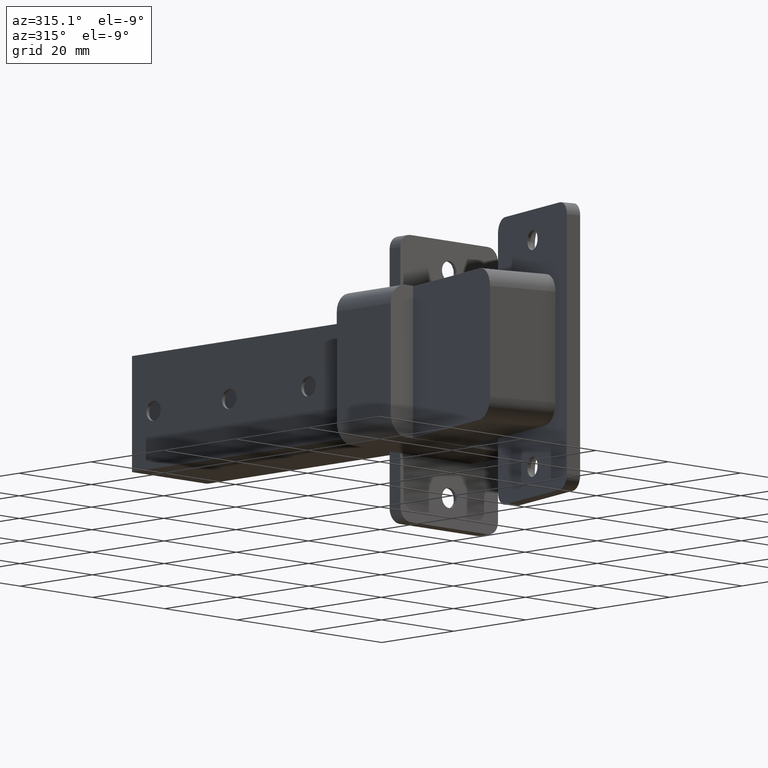
[diagram: clean part render]
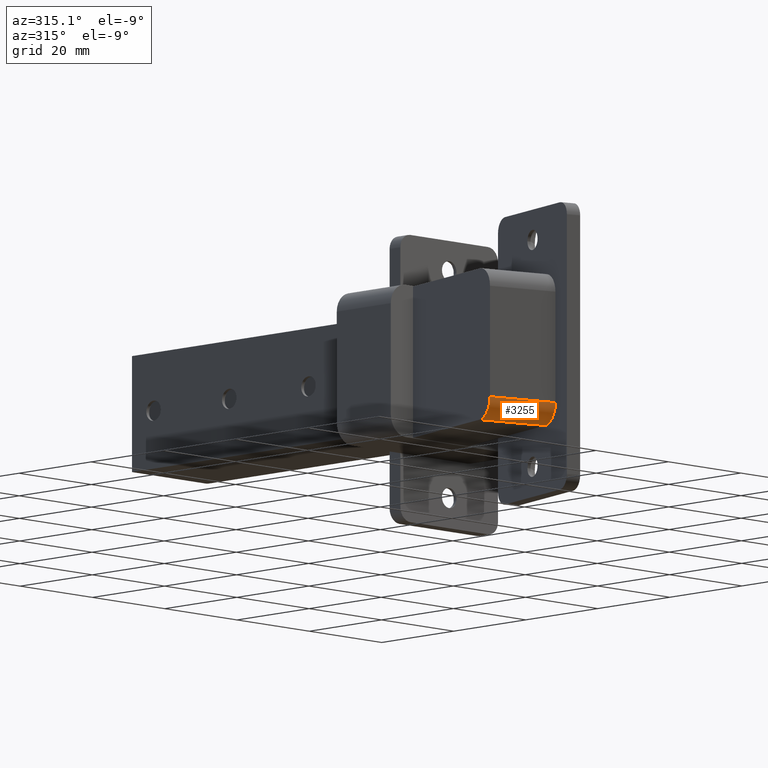
[diagram: same view with one face highlighted and labeled with its STEP entity id]
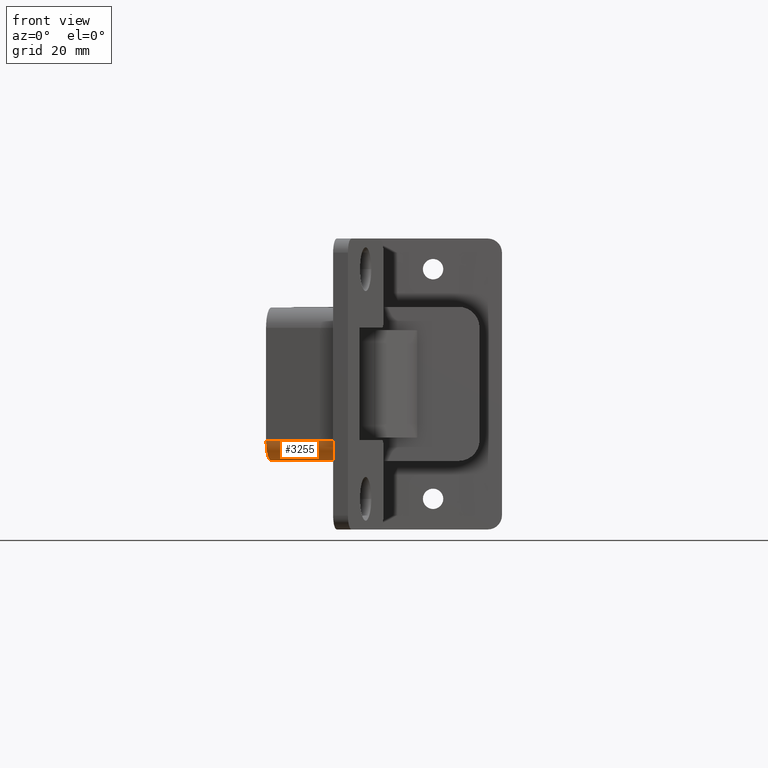
[diagram: same view with one face highlighted and labeled with its STEP entity id]
A machine part, auxiliary view. The second image highlights one B-rep face of the part: STEP entity #3255.
A second angle (front view) of the same face is appended — the face is thin or edge-on in the first view.
In plain terms, the highlighted cylindrical surface (edge-blend (fillet) strip) has radius 4 mm, axis along (-0.9662, 0.2577, 0).
Its self-contained STEP definition (entity closure, byte-faithful):
#71=CYLINDRICAL_SURFACE('',#3494,4.);
#174=CIRCLE('',#3495,4.);
#175=CIRCLE('',#3496,4.00000019574386);
#325=FACE_OUTER_BOUND('',#517,.T.);
#517=EDGE_LOOP('',(#2583,#2584,#2585,#2586));
#791=LINE('',#5087,#1139);
#792=LINE('',#5090,#1140);
#1139=VECTOR('',#4123,1.);
#1140=VECTOR('',#4126,1.);
#1466=VERTEX_POINT('',#5083);
#1467=VERTEX_POINT('',#5084);
#1468=VERTEX_POINT('',#5086);
#1469=VERTEX_POINT('',#5088);
#1863=EDGE_CURVE('',#1466,#1467,#174,.T.);
#1864=EDGE_CURVE('',#1467,#1468,#791,.T.);
#1865=EDGE_CURVE('',#1468,#1469,#175,.F.);
#1866=EDGE_CURVE('',#1469,#1466,#792,.T.);
#2583=ORIENTED_EDGE('',*,*,#1863,.T.);
#2584=ORIENTED_EDGE('',*,*,#1864,.T.);
#2585=ORIENTED_EDGE('',*,*,#1865,.T.);
#2586=ORIENTED_EDGE('',*,*,#1866,.T.);
#3255=ADVANCED_FACE('',(#325),#71,.T.);
#3494=AXIS2_PLACEMENT_3D('',#5082,#4119,#4120);
#3495=AXIS2_PLACEMENT_3D('',#5085,#4121,#4122);
#3496=AXIS2_PLACEMENT_3D('',#5089,#4124,#4125);
#4119=DIRECTION('center_axis',(-0.966218379560913,0.257724742697869,0.));
#4120=DIRECTION('ref_axis',(-0.182238913241214,-0.683219568294606,-0.707106781186543));
#4121=DIRECTION('center_axis',(0.966218379560915,-0.257724742697864,0.));
#4122=DIRECTION('ref_axis',(-0.182238913241214,-0.683219568294606,-0.707106781186543));
#4123=DIRECTION('',(0.966218379560913,-0.257724742697869,0.));
#4124=DIRECTION('center_axis',(0.966298960145056,-0.257422453609982,6.09195873969314E-14));
#4125=DIRECTION('ref_axis',(-0.257422453609982,-0.966298960145056,6.05071518810952E-15));
#4126=DIRECTION('',(-0.966218379560913,0.257724742697869,0.));
#5082=CARTESIAN_POINT('Origin',(-11.3920163385195,-61.9264023817369,-11.0000000000043));
#5083=CARTESIAN_POINT('',(-14.7363084625154,-65.174211820285,-11.0000000000043));
#5084=CARTESIAN_POINT('',(-13.7054094917239,-61.3093383020414,-15.0000000000043));
#5085=CARTESIAN_POINT('Origin',(-13.7054094917241,-61.3093383020414,-11.0000000000043));
#5086=CARTESIAN_POINT('',(0.598161817793198,-65.1246085487958,-15.0000000000043));
#5087=CARTESIAN_POINT('',(-11.3920163385195,-61.9264023817369,-15.0000000000043));
#5088=CARTESIAN_POINT('',(-0.431528047035613,-68.989804578523,-11.0000000000043));
#5089=CARTESIAN_POINT('Origin',(0.598161817793198,-65.1246085487958,-11.0000000000043));
#5090=CARTESIAN_POINT('',(-12.422915309311,-65.7912758999805,-11.0000000000043));